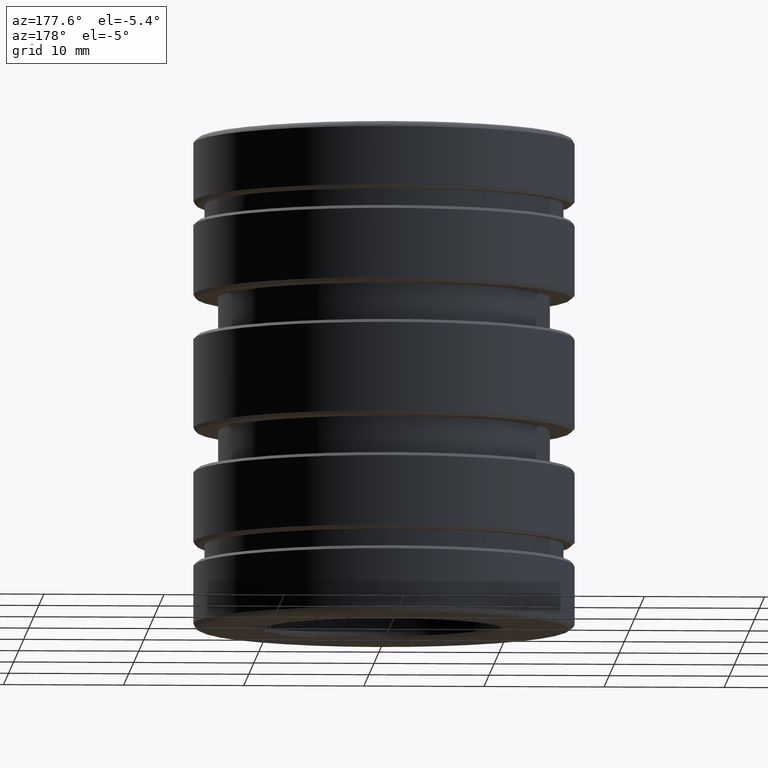
[diagram: clean part render]
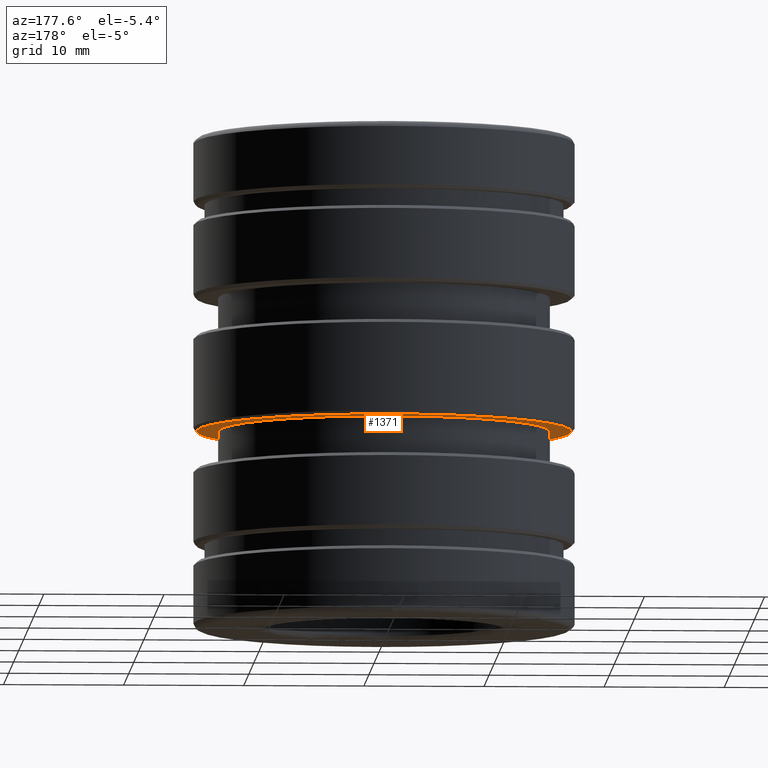
[diagram: same view with one face highlighted and labeled with its STEP entity id]
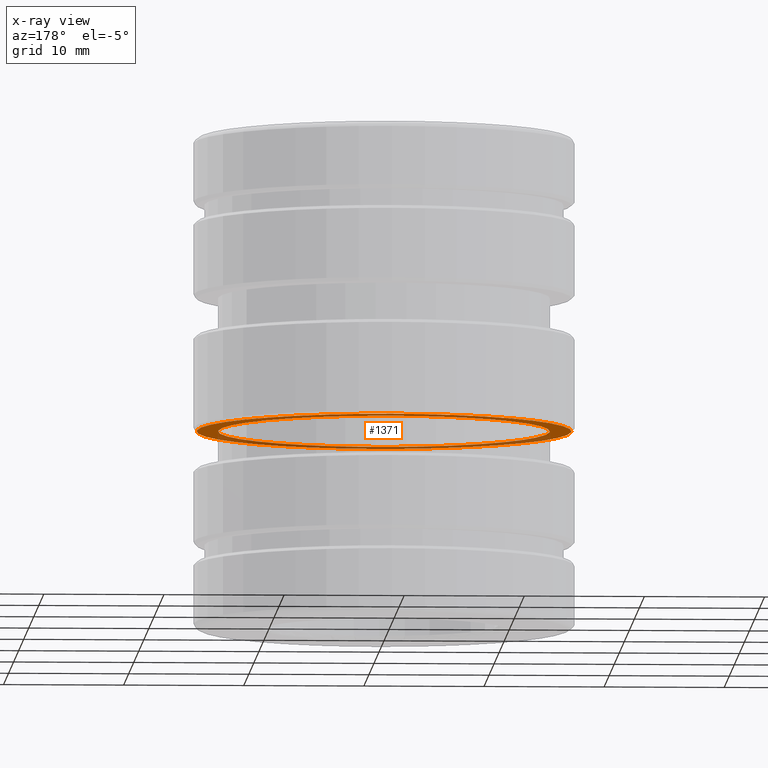
[diagram: x-ray of the same camera — body ghosted, the highlighted face saturated]
A machine part, auxiliary view. The second image highlights one B-rep face of the part: STEP entity #1371.
The next image is the same camera in x-ray: the body ghosted, the highlighted face saturated — about 38% of this face is hidden behind the body in this view.
In plain terms, the highlighted planar face has unit normal (0, 0, 1).
Its self-contained STEP definition (entity closure, byte-faithful):
#172 = DIRECTION ( 'NONE',  ( 0.000000000000000000, 0.000000000000000000, -1.000000000000000000 ) ) ;
#199 = ORIENTED_EDGE ( 'NONE', *, *, #501, .F. ) ;
#274 = CIRCLE ( 'NONE', #1366, 0.5434999999999999831 ) ;
#296 = CIRCLE ( 'NONE', #786, 0.6141249999999994769 ) ;
#304 = PLANE ( 'NONE',  #2669 ) ;
#327 = DIRECTION ( 'NONE',  ( -1.000000000000000000, 0.000000000000000000, 0.000000000000000000 ) ) ;
#345 = ORIENTED_EDGE ( 'NONE', *, *, #1703, .T. ) ;
#354 = CARTESIAN_POINT ( 'NONE',  ( 0.6141249999999994769, 0.000000000000000000, -0.1560000000000000553 ) ) ;
#481 = CARTESIAN_POINT ( 'NONE',  ( 0.000000000000000000, 0.000000000000000000, -0.1560000000000000553 ) ) ;
#501 = EDGE_CURVE ( 'NONE', #600, #2279, #782, .T. ) ;
#600 = VERTEX_POINT ( 'NONE', #2267 ) ;
#752 = DIRECTION ( 'NONE',  ( 0.000000000000000000, 0.000000000000000000, -1.000000000000000000 ) ) ;
#782 = CIRCLE ( 'NONE', #827, 0.5434999999999999831 ) ;
#786 = AXIS2_PLACEMENT_3D ( 'NONE', #2595, #752, #1747 ) ;
#808 = DIRECTION ( 'NONE',  ( 0.000000000000000000, 0.000000000000000000, -1.000000000000000000 ) ) ;
#827 = AXIS2_PLACEMENT_3D ( 'NONE', #1484, #172, #2781 ) ;
#1334 = EDGE_CURVE ( 'NONE', #2613, #2420, #2198, .T. ) ;
#1342 = DIRECTION ( 'NONE',  ( 0.000000000000000000, 0.000000000000000000, -1.000000000000000000 ) ) ;
#1366 = AXIS2_PLACEMENT_3D ( 'NONE', #1854, #808, #1648 ) ;
#1371 = ADVANCED_FACE ( 'NONE', ( #1876, #2074 ), #304, .F. ) ;
#1484 = CARTESIAN_POINT ( 'NONE',  ( 0.000000000000000000, 0.000000000000000000, -0.1560000000000001941 ) ) ;
#1587 = CARTESIAN_POINT ( 'NONE',  ( -0.6141249999999994769, 7.585156112218915536E-17, -0.1560000000000000553 ) ) ;
#1613 = AXIS2_PLACEMENT_3D ( 'NONE', #481, #1342, #2214 ) ;
#1648 = DIRECTION ( 'NONE',  ( -1.000000000000000000, 0.000000000000000000, 0.000000000000000000 ) ) ;
#1684 = CARTESIAN_POINT ( 'NONE',  ( 0.5434999999999999831, -6.655955353365864118E-17, -0.1560000000000001941 ) ) ;
#1703 = EDGE_CURVE ( 'NONE', #2420, #2613, #296, .T. ) ;
#1747 = DIRECTION ( 'NONE',  ( 1.000000000000000000, 0.000000000000000000, 0.000000000000000000 ) ) ;
#1836 = EDGE_LOOP ( 'NONE', ( #345, #2800 ) ) ;
#1854 = CARTESIAN_POINT ( 'NONE',  ( 0.000000000000000000, 0.000000000000000000, -0.1560000000000001941 ) ) ;
#1876 = FACE_OUTER_BOUND ( 'NONE', #1836, .T. ) ;
#1955 = ORIENTED_EDGE ( 'NONE', *, *, #2258, .F. ) ;
#2074 = FACE_BOUND ( 'NONE', #2106, .T. ) ;
#2106 = EDGE_LOOP ( 'NONE', ( #199, #1955 ) ) ;
#2198 = CIRCLE ( 'NONE', #1613, 0.6141249999999994769 ) ;
#2214 = DIRECTION ( 'NONE',  ( 1.000000000000000000, 0.000000000000000000, 0.000000000000000000 ) ) ;
#2258 = EDGE_CURVE ( 'NONE', #2279, #600, #274, .T. ) ;
#2267 = CARTESIAN_POINT ( 'NONE',  ( -0.5434999999999999831, 0.000000000000000000, -0.1560000000000001941 ) ) ;
#2274 = DIRECTION ( 'NONE',  ( 0.000000000000000000, -0.000000000000000000, 1.000000000000000000 ) ) ;
#2279 = VERTEX_POINT ( 'NONE', #1684 ) ;
#2290 = CARTESIAN_POINT ( 'NONE',  ( 0.000000000000000000, 0.5434999999999999831, -0.1560000000000000553 ) ) ;
#2420 = VERTEX_POINT ( 'NONE', #354 ) ;
#2595 = CARTESIAN_POINT ( 'NONE',  ( 0.000000000000000000, 0.000000000000000000, -0.1560000000000000553 ) ) ;
#2613 = VERTEX_POINT ( 'NONE', #1587 ) ;
#2669 = AXIS2_PLACEMENT_3D ( 'NONE', #2290, #2274, #327 ) ;
#2781 = DIRECTION ( 'NONE',  ( -1.000000000000000000, 0.000000000000000000, 0.000000000000000000 ) ) ;
#2800 = ORIENTED_EDGE ( 'NONE', *, *, #1334, .T. ) ;